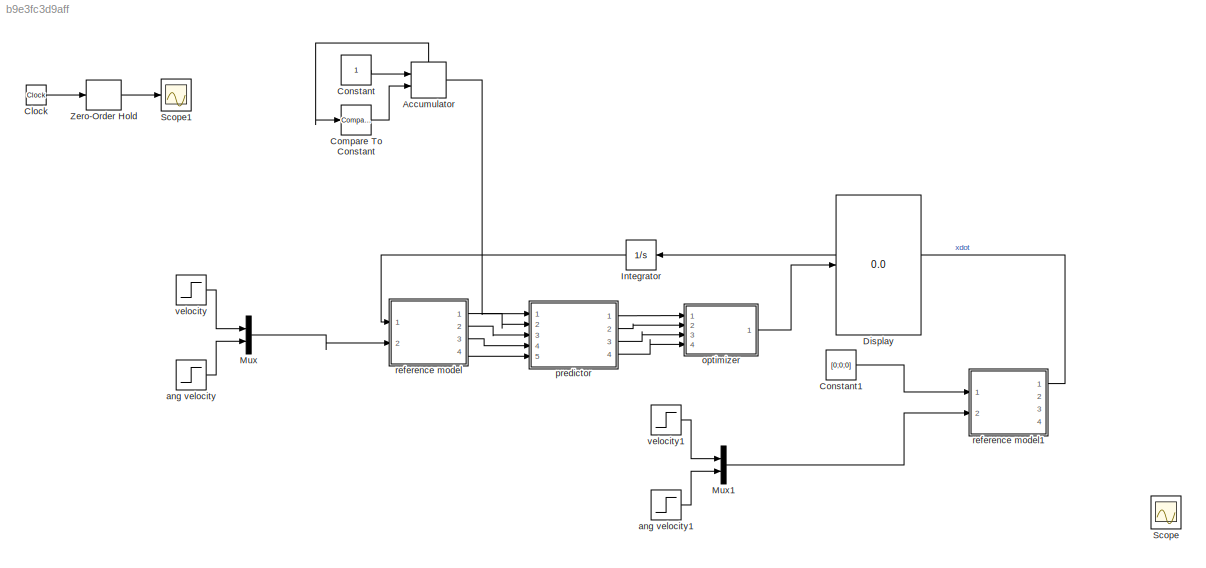
MODEL slx_b9e3fc3d9aff
KIND model
CONFIG AbsTol = auto
CONFIG EnableMultiTasking = off
CONFIG FixedStep = auto
CONFIG MaxStep = auto
CONFIG MinStep = auto
CONFIG RelTol = 1e-3
CONFIG SampleTimeConstraint = Unconstrained
CONFIG Solver = VariableStepAuto
CONFIG SolverName = VariableStepAuto
CONFIG StartTime = 0.0
CONFIG StopTime = 10.0
BLOCK [DiscreteIntegrator] Accumulator
  ExternalReset = rising
  ICPrevOutput = DiscIntNeverNeededParam
  ICPrevScaledInput = DiscIntNeverNeededParam
  InitialConditionSetting = Auto
  IntegratorMethod = Accumulation: Forward Euler
  Ports = [2, 1, 0, 0, 1]
  SampleTime = -1
  ShowStatePort = on
BLOCK [Clock] Clock
BLOCK [Reference] Compare To Constant  REF=simulink/Logic and Bit
Operations/Compare
To Constant
  Ports = [1, 1]
  SourceBlock = simulink/Logic and Bit\nOperations/Compare\nTo Constant
  SourceProductBaseCode = SL
  SourceProductName = Simulink
  SourceType = Compare To Constant
BLOCK [Constant] Constant
BLOCK [Constant] Constant1
  Value = [0;0;0]
BLOCK [Display] Display
  Decimation = 1
  Ports = [1]
BLOCK [Integrator] Integrator
  Ports = [1, 1]
BLOCK [Mux] Mux
  DisplayOption = bar
  Inputs = 2
  Ports = [2, 1]
BLOCK [Mux] Mux1
  DisplayOption = bar
  Inputs = 2
  Ports = [2, 1]
BLOCK [Scope] Scope
  Floating = off
  NumInputPorts = 2
  Ports = [2]
  ScopeSpecificationString = Simulink.scopes.TimeScopeBlockCfg('CurrentConfiguration', extmgr.ConfigurationSet(extmgr.Configuration('Core','General UI',true),extmgr.Configuration('Core','Source UI',true),extmgr.Configuration('Sources','WiredSimulink',true),extmgr.Configuration('Visuals','Time Domain',true,'SerializedDisplays',{struct('MinYLimReal','-3.2881','MaxYLimReal','5.12291','YLabelReal','','MinYLimMag','0.00000','MaxYL...<+1386ch>
BLOCK [Scope] Scope1
  Floating = off
  NumInputPorts = 1
  Ports = [1]
  ScopeSpecificationString = Simulink.scopes.TimeScopeBlockCfg('CurrentConfiguration', extmgr.ConfigurationSet(extmgr.Configuration('Core','General UI',true),extmgr.Configuration('Core','Source UI',true),extmgr.Configuration('Sources','WiredSimulink',true,'DataLoggingVariableName','ScopeData1'),extmgr.Configuration('Visuals','Time Domain',true),extmgr.Configuration('Tools','Plot Navigation',true),extmgr.Configuration('Tools',...<+87ch>
BLOCK [ZeroOrderHold] Zero-Order Hold
  SampleTime = -1
BLOCK [Step] ang velocity
  After = 0
  SampleTime = 0
BLOCK [Step] ang velocity1
  After = 0
  SampleTime = 0
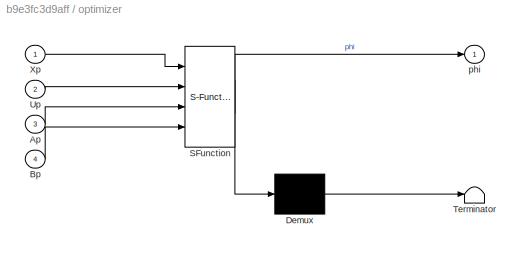
BLOCK [SubSystem] optimizer
  ErrorFcn = Stateflow.Translate.translate
  PermitHierarchicalResolution = ExplicitOnly
  Ports = [4, 1]
  RequestExecContextInheritance = off
  SFBlockType = MATLAB Function
  TreatAsAtomicUnit = on
BLOCK [Demux] optimizer/ Demux 
  DisplayOption = bar
  Outputs = 1
  Ports = [1, 1]
BLOCK [S-Function] optimizer/ SFunction 
  EnableBusSupport = on
  FunctionName = sf_sfun
  PortCounts = [4 2]
  Ports = [4, 2]
  SFcnIsStateOwnerBlock = off
  SFunctionDeploymentMode = off
  Tag = Stateflow S-Function 1
BLOCK [Terminator] optimizer/ Terminator 
BLOCK [Inport] optimizer/Ap
  IconDisplay = Port number
  Port = 3
BLOCK [Inport] optimizer/Bp
  IconDisplay = Port number
  Port = 4
BLOCK [Inport] optimizer/Up
  IconDisplay = Port number
  Port = 2
BLOCK [Inport] optimizer/Xp
  IconDisplay = Port number
BLOCK [Outport] optimizer/phi
  IconDisplay = Port number
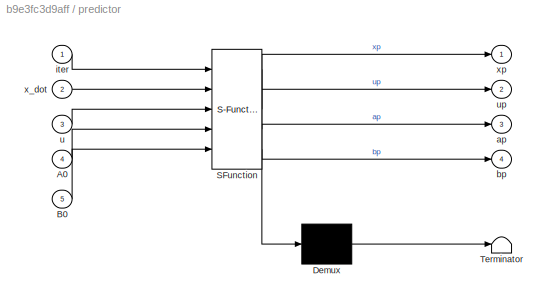
BLOCK [SubSystem] predictor
  ErrorFcn = Stateflow.Translate.translate
  PermitHierarchicalResolution = ExplicitOnly
  Ports = [5, 4]
  RequestExecContextInheritance = off
  SFBlockType = MATLAB Function
  TreatAsAtomicUnit = on
BLOCK [Demux] predictor/ Demux 
  DisplayOption = bar
  Outputs = 1
  Ports = [1, 1]
BLOCK [S-Function] predictor/ SFunction 
  EnableBusSupport = on
  FunctionName = sf_sfun
  PortCounts = [5 5]
  Ports = [5, 5]
  SFcnIsStateOwnerBlock = off
  SFunctionDeploymentMode = off
  Tag = Stateflow S-Function 2
BLOCK [Terminator] predictor/ Terminator 
BLOCK [Inport] predictor/A0
  IconDisplay = Port number
  Port = 4
BLOCK [Inport] predictor/B0
  IconDisplay = Port number
  Port = 5
BLOCK [Outport] predictor/ap
  IconDisplay = Port number
  Port = 3
BLOCK [Outport] predictor/bp
  IconDisplay = Port number
  Port = 4
BLOCK [Inport] predictor/iter
  IconDisplay = Port number
BLOCK [Inport] predictor/u
  IconDisplay = Port number
  Port = 3
BLOCK [Outport] predictor/up
  IconDisplay = Port number
  Port = 2
BLOCK [Inport] predictor/x_dot
  IconDisplay = Port number
  Port = 2
BLOCK [Outport] predictor/xp
  IconDisplay = Port number
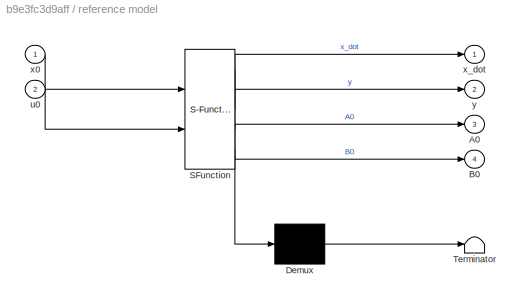
BLOCK [SubSystem] reference model
  ErrorFcn = Stateflow.Translate.translate
  PermitHierarchicalResolution = ExplicitOnly
  Ports = [2, 4]
  RequestExecContextInheritance = off
  SFBlockType = MATLAB Function
  TreatAsAtomicUnit = on
BLOCK [Demux] reference model/ Demux 
  DisplayOption = bar
  Outputs = 1
  Ports = [1, 1]
BLOCK [S-Function] reference model/ SFunction 
  EnableBusSupport = on
  FunctionName = sf_sfun
  PortCounts = [2 5]
  Ports = [2, 5]
  SFcnIsStateOwnerBlock = off
  SFunctionDeploymentMode = off
  Tag = Stateflow S-Function 3
BLOCK [Terminator] reference model/ Terminator 
BLOCK [Outport] reference model/A0
  IconDisplay = Port number
  Port = 3
BLOCK [Outport] reference model/B0
  IconDisplay = Port number
  Port = 4
BLOCK [Inport] reference model/u0
  IconDisplay = Port number
  Port = 2
BLOCK [Inport] reference model/x0
  IconDisplay = Port number
BLOCK [Outport] reference model/x_dot
  IconDisplay = Port number
BLOCK [Outport] reference model/y
  IconDisplay = Port number
  Port = 2
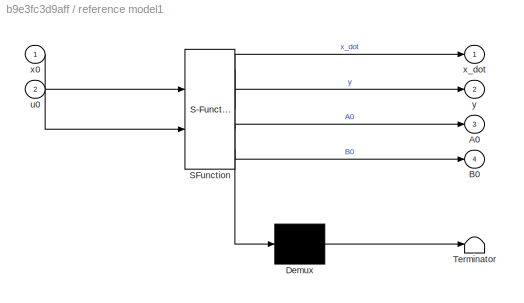
BLOCK [SubSystem] reference model1
  ErrorFcn = Stateflow.Translate.translate
  PermitHierarchicalResolution = ExplicitOnly
  Ports = [2, 4]
  RequestExecContextInheritance = off
  SFBlockType = MATLAB Function
  TreatAsAtomicUnit = on
BLOCK [Demux] reference model1/ Demux 
  DisplayOption = bar
  Outputs = 1
  Ports = [1, 1]
BLOCK [S-Function] reference model1/ SFunction 
  EnableBusSupport = on
  FunctionName = sf_sfun
  PortCounts = [2 5]
  Ports = [2, 5]
  SFcnIsStateOwnerBlock = off
  SFunctionDeploymentMode = off
  Tag = Stateflow S-Function 4
BLOCK [Terminator] reference model1/ Terminator 
BLOCK [Outport] reference model1/A0
  IconDisplay = Port number
  Port = 3
BLOCK [Outport] reference model1/B0
  IconDisplay = Port number
  Port = 4
BLOCK [Inport] reference model1/u0
  IconDisplay = Port number
  Port = 2
BLOCK [Inport] reference model1/x0
  IconDisplay = Port number
BLOCK [Outport] reference model1/x_dot
  IconDisplay = Port number
BLOCK [Outport] reference model1/y
  IconDisplay = Port number
  Port = 2
BLOCK [Step] velocity
  SampleTime = 0
BLOCK [Step] velocity1
  SampleTime = 0
LINE Accumulator:1 -> predictor:1
LINE Accumulator:state -> Compare To Constant:1
LINE Clock:1 -> Zero-Order Hold:1
LINE Compare To Constant:1 -> Accumulator:2
LINE Constant1:1 -> reference model1:1
LINE Constant:1 -> Accumulator:1
LINE Integrator:1 -> reference model:1
LINE Mux1:1 -> reference model1:2
LINE Mux:1 -> reference model:2
LINE Zero-Order Hold:1 -> Scope1:1
LINE ang velocity1:1 -> Mux1:2
LINE ang velocity:1 -> Mux:2
LINE optimizer:1 -> Display:1
LINE predictor:1 -> optimizer:1
LINE predictor:2 -> optimizer:2
LINE predictor:3 -> optimizer:3
LINE predictor:4 -> optimizer:4
LINE reference model1:1 -> Integrator:1
LINE reference model:1 -> predictor:2
LINE reference model:2 -> predictor:3
LINE reference model:3 -> predictor:4
LINE reference model:4 -> predictor:5
LINE velocity1:1 -> Mux1:1
LINE velocity:1 -> Mux:1
CHART optimizer states=1 transitions=1
  STATE_LABEL 'eML_blk_kernel()'
  STATE_LABEL 'SCRIPT:\nfunction phi = fcn(Xp,Up,Ap,Bp)\n% syms vr theta T real\n% x0 = [0;0;0];\n% u0 = [0;0];\n% A = [1 0 -vr*sin(theta)*T; 0 1 vr*cos(theta)*T; 0 0 1];\n% B = [cos(theta)*T 0; sin(theta)*T 0; 0 T];\nQ = diag([1 1 0.5]);\nR = eye(2)*0.1;\n\nA1 = Ap(1:3,:);\nA2 = Ap(4:6,:);\nA3 = Ap(7:9,:);\nA4 = Ap(10:12,:);\n\nB1 = Bp(1:3,:);\nB2 = Bp(4:6,:);\nB3 = Bp(7:9,:);\nB4 = Bp(10:12,:);\n\nA_hat = [A1; A2*A1; A3*A2*A1; A4...<+664ch>'
CHART predictor states=1 transitions=1
  STATE_LABEL 'eML_blk_kernel()'
  STATE_LABEL 'SCRIPT:\nfunction [xp,up,ap,bp] = fcn(iter,x_dot,u,A0,B0)\n% This code is in charge of accumulating data for posterior optimization\n\npersistent Xp;\npersistent Up;\npersistent Ap;\npersistent Bp;\npersistent flag;\n\nif iter >= 3\n    Xp = zeros(4,3);\n    Up = zeros(4,2);\n    Ap = zeros(12,3);\n    Bp = zeros(12,2);\n    flag = 1;\n    \nend\n\nif isempty(Xp)\n    Xp = zeros(4,3);\nend\nif isempty(Up)\n    Up = zero...<+329ch>'
CHART reference model states=1 transitions=1
  STATE_LABEL 'eML_blk_kernel()'
  STATE_LABEL 'SCRIPT:\nfunction [x_dot,y,A0,B0]= ref_mod(x0,u0)\n\nC = [1 1 1 ];\nD = [0 0];\nA0 = [1 0 u0(1)*sin(x0(3)); 0 1 u0(1)*cos(x0(3)); 0 0 1];\nB0 = [cos(x0(3)) 0; sin(x0(3)) 0; 0 1];\n\nx_dot = A0*x0+B0*u0;\ny = C*x0;\n\nend\n'
CHART reference model1 states=1 transitions=1
  STATE_LABEL 'eML_blk_kernel()'
  STATE_LABEL 'SCRIPT:\nfunction [x_dot,y,A0,B0]= ref_mod(x0,u0)\n\nC = [1 1 1 ];\nD = [0 0];\nA0 = [1 0 u0(1)*sin(x0(3)); 0 1 u0(1)*cos(x0(3)); 0 0 1];\nB0 = [cos(x0(3)) 0; sin(x0(3)) 0; 0 1];\n\nx_dot = A0*x0+B0*u0;\ny = C*x0;\n\nend\n'
